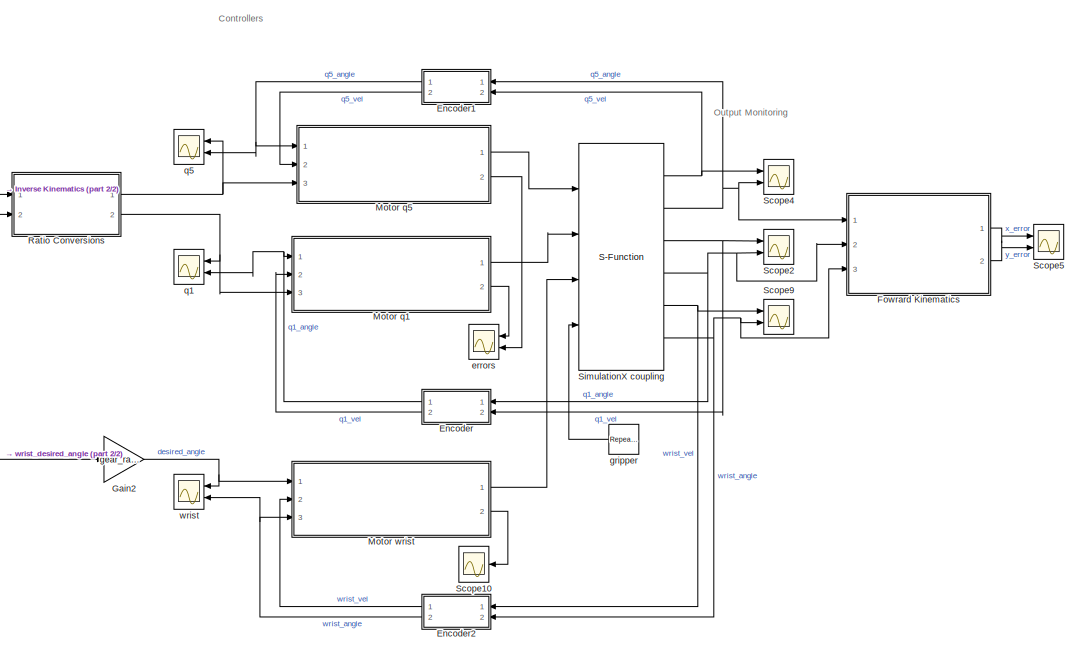
[diagram: root canvas - part 1/2, right side, full height]
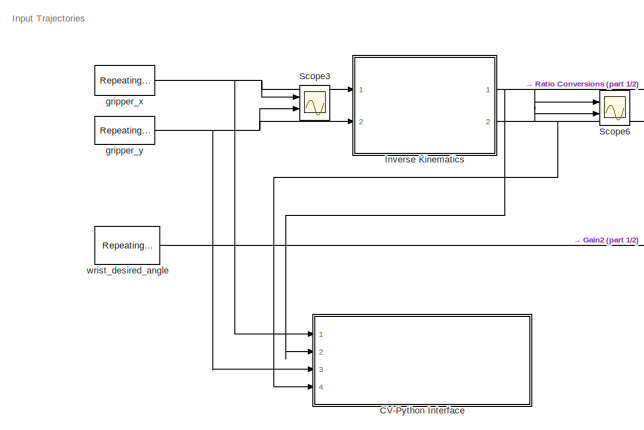
[diagram: root canvas - part 2/2, middle left region]
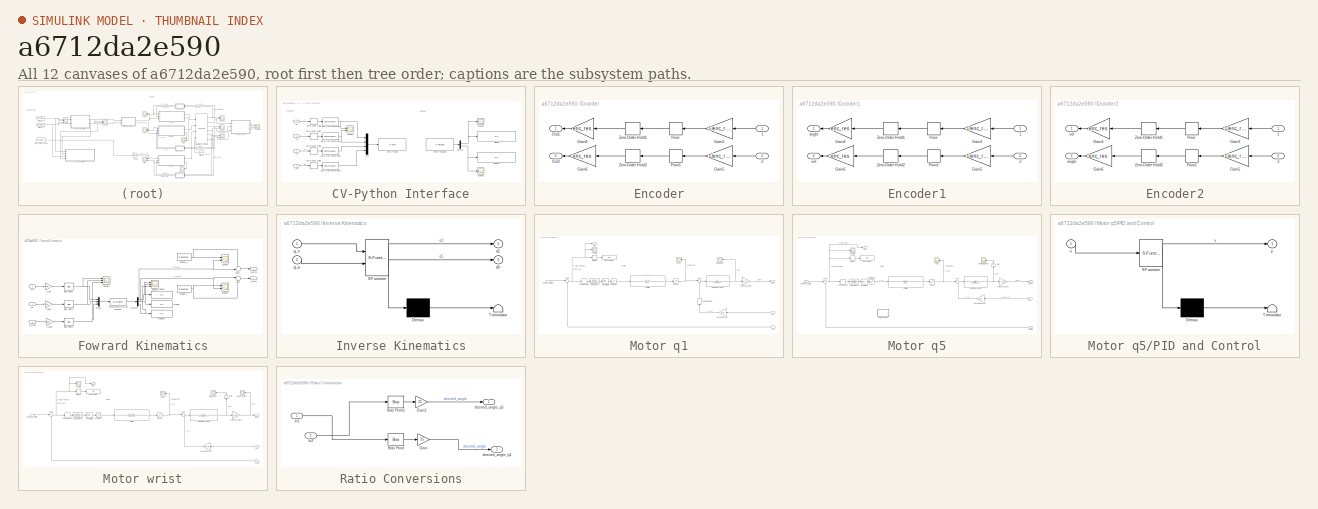
[diagram: thumbnail index - all 12 canvases of the model, root first then tree order]
MODEL slx_a6712da2e590
KIND model
CONFIG AbsTol = auto
CONFIG EnableMultiTasking = off
CONFIG FixedStep = 0.00001
CONFIG InitFcn = p_init;\np_init_wrist;
CONFIG MaxStep = auto
CONFIG MinStep = auto
CONFIG RelTol = 1
CONFIG SampleTimeConstraint = Unconstrained
CONFIG SolverName = ode15s
CONFIG StartTime = 0.0
CONFIG StopTime = 0.75
BLOCK [SubSystem] CV-Python Interface
  Commented = on
  Ports = [4]
  RequestExecContextInheritance = off
BLOCK [DataTypeConversion] CV-Python Interface/Data Type Conversion
  OutDataTypeStr = double
  RndMeth = Floor
  SaturateOnIntegerOverflow = off
BLOCK [DataTypeConversion] CV-Python Interface/Data Type Conversion1
  OutDataTypeStr = double
  RndMeth = Floor
  SaturateOnIntegerOverflow = off
BLOCK [DataTypeConversion] CV-Python Interface/Data Type Conversion2
  NameLocation = top
  OutDataTypeStr = double
  RndMeth = Floor
  SaturateOnIntegerOverflow = off
BLOCK [DataTypeConversion] CV-Python Interface/Data Type Conversion3
  NameLocation = top
  OutDataTypeStr = double
  RndMeth = Floor
  SaturateOnIntegerOverflow = off
BLOCK [Demux] CV-Python Interface/Demux
  Outputs = 2
  Ports = [1, 2]
BLOCK [Display] CV-Python Interface/Display
  Decimation = 1
  Format = decimal (Stored Integer)
  Ports = [1]
BLOCK [Display] CV-Python Interface/Display1
  Decimation = 1
  Format = decimal (Stored Integer)
  Ports = [1]
BLOCK [Inport] CV-Python Interface/In1
  IconDisplay = Signal name
BLOCK [Inport] CV-Python Interface/In2
  IconDisplay = Signal name
  Port = 2
BLOCK [Inport] CV-Python Interface/In3
  IconDisplay = Signal name
  Port = 3
BLOCK [Inport] CV-Python Interface/In4
  IconDisplay = Signal name
  Port = 4
BLOCK [Mux] CV-Python Interface/Mux
  DisplayOption = bar
  Ports = [4, 1]
BLOCK [Scope] CV-Python Interface/Scope1
  Floating = off
  NumInputPorts = 1
  Ports = [1]
  ScopeSpecificationString = Simulink.scopes.TimeScopeBlockCfg('CurrentConfiguration', extmgr.ConfigurationSet(extmgr.Configuration('Core','General UI',true),extmgr.Configuration('Core','Source UI',true),extmgr.Configuration('Sources','WiredSimulink',true,'DataLoggingVariableName','ScopeData1'),extmgr.Configuration('Visuals','Time Domain',true,'SerializedDisplays',{struct('MinYLimReal','-124.00000','MaxYLimReal','1126.00000',...<+1384ch>
BLOCK [Scope] CV-Python Interface/Scope2
  Floating = off
  NumInputPorts = 1
  Ports = [1]
  ScopeSpecificationString = Simulink.scopes.TimeScopeBlockCfg('CurrentConfiguration', extmgr.ConfigurationSet(extmgr.Configuration('Core','General UI',true),extmgr.Configuration('Core','Source UI',true),extmgr.Configuration('Sources','WiredSimulink',true,'DataLoggingVariableName','ScopeData2'),extmgr.Configuration('Visuals','Time Domain',true,'SerializedDisplays',{struct('MinYLimReal','-12.4','MaxYLimReal','112.6','YLabelRea...<+1352ch>
BLOCK [Scope] CV-Python Interface/Scope4
  Floating = off
  NumInputPorts = 2
  Ports = [2]
  ScopeSpecificationString = Simulink.scopes.TimeScopeBlockCfg('CurrentConfiguration', extmgr.ConfigurationSet(extmgr.Configuration('Core','General UI',true),extmgr.Configuration('Core','Source UI',true),extmgr.Configuration('Sources','WiredSimulink',true,'DataLoggingVariableName','ScopeData4'),extmgr.Configuration('Visuals','Time Domain',true,'SerializedDisplays',{struct('MinYLimReal','-10.00000','MaxYLimReal','10.00000','YL...<+1442ch>
BLOCK [Reference] CV-Python Interface/TCP//IP Receive  REF=instrumentlib/TCP//IP Receive
  Ports = [0, 1]
  Priority = 1
  SourceBlock = instrumentlib/TCP//IP Receive
  SourceProductBaseCode = IC
  SourceType = TCP/IP Receive
BLOCK [Reference] CV-Python Interface/TCP//IP Send  REF=instrumentlib/TCP//IP Send
  Ports = [1]
  Priority = 2
  SourceBlock = instrumentlib/TCP//IP Send
  SourceProductBaseCode = IC
  SourceType = TCP/IP Send
BLOCK [ZeroOrderHold] CV-Python Interface/Zero-Order Hold
  SampleTime = 0.01
BLOCK [ZeroOrderHold] CV-Python Interface/Zero-Order Hold1
  SampleTime = 0.01
BLOCK [ZeroOrderHold] CV-Python Interface/Zero-Order Hold2
  SampleTime = 0.01
BLOCK [ZeroOrderHold] CV-Python Interface/Zero-Order Hold3
  SampleTime = 0.01
BLOCK [SubSystem] Encoder
  Ports = [2, 2]
  RequestExecContextInheritance = off
BLOCK [Inport] Encoder/1
BLOCK [Inport] Encoder/2
  Port = 2
BLOCK [Rounding] Encoder/Floor
BLOCK [Rounding] Encoder/Floor1
BLOCK [Gain] Encoder/Gain3
  Gain = 1/enc_res
BLOCK [Gain] Encoder/Gain4
  Gain = enc_res
BLOCK [Gain] Encoder/Gain5
  Gain = 1/enc_res
BLOCK [Gain] Encoder/Gain6
  Gain = enc_res
BLOCK [Outport] Encoder/Out1
BLOCK [Outport] Encoder/Out2
  Port = 2
BLOCK [ZeroOrderHold] Encoder/Zero-Order Hold1
  SampleTime = 0.001
BLOCK [ZeroOrderHold] Encoder/Zero-Order Hold2
  SampleTime = 0.001
BLOCK [SubSystem] Encoder1
  Ports = [2, 2]
  RequestExecContextInheritance = off
BLOCK [Inport] Encoder1/1
BLOCK [Inport] Encoder1/2
  Port = 2
BLOCK [Rounding] Encoder1/Floor
BLOCK [Rounding] Encoder1/Floor1
BLOCK [Gain] Encoder1/Gain3
  Gain = 1/enc_res
BLOCK [Gain] Encoder1/Gain4
  Gain = enc_res
BLOCK [Gain] Encoder1/Gain5
  Gain = 1/enc_res
BLOCK [Gain] Encoder1/Gain6
  Gain = enc_res
BLOCK [ZeroOrderHold] Encoder1/Zero-Order Hold1
  SampleTime = 0.001
BLOCK [ZeroOrderHold] Encoder1/Zero-Order Hold2
  SampleTime = 0.001
BLOCK [Outport] Encoder1/angle
BLOCK [Outport] Encoder1/vel
  Port = 2
BLOCK [SubSystem] Encoder2
  Ports = [2, 2]
  RequestExecContextInheritance = off
BLOCK [Inport] Encoder2/1
BLOCK [Inport] Encoder2/2
  Port = 2
BLOCK [Rounding] Encoder2/Floor
BLOCK [Rounding] Encoder2/Floor1
BLOCK [Gain] Encoder2/Gain3
  Gain = 1/enc_res
BLOCK [Gain] Encoder2/Gain4
  Gain = enc_res
BLOCK [Gain] Encoder2/Gain5
  Gain = 1/enc_res
BLOCK [Gain] Encoder2/Gain6
  Gain = enc_res
BLOCK [ZeroOrderHold] Encoder2/Zero-Order Hold1
  SampleTime = 0.001
BLOCK [ZeroOrderHold] Encoder2/Zero-Order Hold2
  SampleTime = 0.001
BLOCK [Outport] Encoder2/angle
  Port = 2
BLOCK [Outport] Encoder2/vel
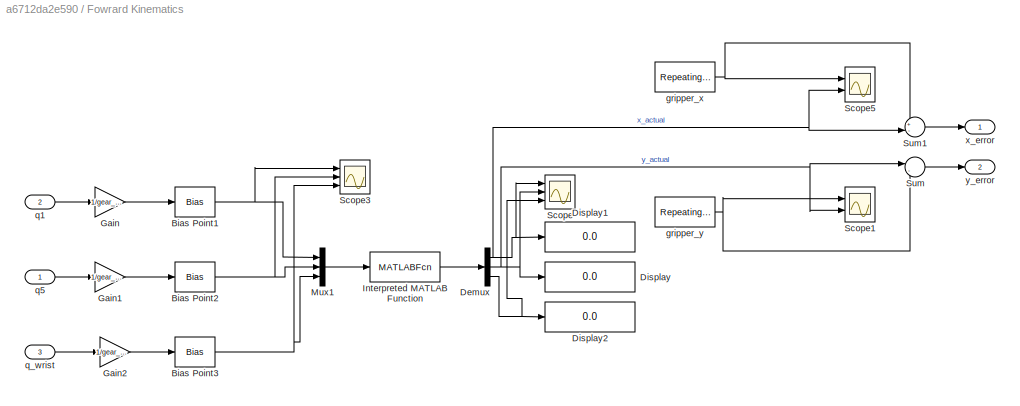
BLOCK [SubSystem] Fowrard Kinematics
  Ports = [3, 2]
  RequestExecContextInheritance = off
BLOCK [Bias] Fowrard Kinematics/Bias Point1
  Bias = +pi/2
  SaturateOnIntegerOverflow = off
BLOCK [Bias] Fowrard Kinematics/Bias Point2
  Bias = +pi/2
  SaturateOnIntegerOverflow = off
BLOCK [Bias] Fowrard Kinematics/Bias Point3
  Bias = +pi/2
  SaturateOnIntegerOverflow = off
BLOCK [Demux] Fowrard Kinematics/Demux
  Outputs = 3
  Ports = [1, 3]
BLOCK [Display] Fowrard Kinematics/Display
  Decimation = 1
  Ports = [1]
BLOCK [Display] Fowrard Kinematics/Display1
  Decimation = 1
  Ports = [1]
BLOCK [Display] Fowrard Kinematics/Display2
  Decimation = 1
  Ports = [1]
BLOCK [Gain] Fowrard Kinematics/Gain
  Gain = 1/gear_ratio
BLOCK [Gain] Fowrard Kinematics/Gain1
  Gain = 1/gear_ratio
BLOCK [Gain] Fowrard Kinematics/Gain2
  Gain = 1/gear_ratio_w
BLOCK [MATLABFcn] Fowrard Kinematics/Interpreted MATLAB Function
  MATLABFcn = fwd_kin_vect(u(1), u(2), u(3))
  OutputDimensions = 3
  Ports = [1, 1]
BLOCK [Mux] Fowrard Kinematics/Mux1
  DisplayOption = bar
  Inputs = 3
  Ports = [3, 1]
BLOCK [Scope] Fowrard Kinematics/Scope
  Floating = off
  NumInputPorts = 3
  Ports = [3]
  ScopeSpecificationString = Simulink.scopes.TimeScopeBlockCfg('CurrentConfiguration', extmgr.ConfigurationSet(extmgr.Configuration('Core','General UI',true),extmgr.Configuration('Core','Source UI',true),extmgr.Configuration('Sources','WiredSimulink',true,'DataLoggingVariableName','ScopeData3'),extmgr.Configuration('Visuals','Time Domain',true,'SerializedDisplays',{struct('MinYLimReal','-10.87955','MaxYLimReal','17.88676','YL...<+1421ch>
BLOCK [Scope] Fowrard Kinematics/Scope1
  Floating = off
  NumInputPorts = 2
  Ports = [2]
  ScopeSpecificationString = Simulink.scopes.TimeScopeBlockCfg('CurrentConfiguration', extmgr.ConfigurationSet(extmgr.Configuration('Core','General UI',true),extmgr.Configuration('Core','Source UI',true),extmgr.Configuration('Sources','WiredSimulink',true,'DataLoggingVariableName','ScopeData4'),extmgr.Configuration('Visuals','Time Domain',true,'SerializedDisplays',{struct('MinYLimReal','3.69595','MaxYLimReal','16.26726','YLab...<+1618ch>
BLOCK [Scope] Fowrard Kinematics/Scope3
  Floating = off
  NumInputPorts = 3
  Ports = [3]
  ScopeSpecificationString = Simulink.scopes.TimeScopeBlockCfg('CurrentConfiguration', extmgr.ConfigurationSet(extmgr.Configuration('Core','General UI',true),extmgr.Configuration('Core','Source UI',true),extmgr.Configuration('Sources','WiredSimulink',true,'DataLoggingVariableName','ScopeData6'),extmgr.Configuration('Visuals','Time Domain',true,'SerializedDisplays',{struct('MinYLimReal','-0.58819','MaxYLimReal','3.72797','YLab...<+1425ch>
BLOCK [Scope] Fowrard Kinematics/Scope5
  Floating = off
  NumInputPorts = 2
  Ports = [2]
  ScopeSpecificationString = Simulink.scopes.TimeScopeBlockCfg('CurrentConfiguration', extmgr.ConfigurationSet(extmgr.Configuration('Core','General UI',true),extmgr.Configuration('Core','Source UI',true),extmgr.Configuration('Sources','WiredSimulink',true,'DataLoggingVariableName','ScopeData3'),extmgr.Configuration('Visuals','Time Domain',true,'SerializedDisplays',{struct('MinYLimReal','-9.50328','MaxYLimReal','5.50036','YLab...<+1616ch>
BLOCK [Sum] Fowrard Kinematics/Sum
  Inputs = |-+
  Ports = [2, 1]
BLOCK [Sum] Fowrard Kinematics/Sum1
  Inputs = +-|
  NameLocation = top
  Ports = [2, 1]
BLOCK [Reference] Fowrard Kinematics/gripper_x  REF=simulink/Sources/Repeating
Sequence
  Ports = [0, 1]
  SourceBlock = simulink/Sources/Repeating\nSequence
  SourceProductBaseCode = SL
  SourceType = Repeating table
BLOCK [Reference] Fowrard Kinematics/gripper_y  REF=simulink/Sources/Repeating
Sequence
  Ports = [0, 1]
  SourceBlock = simulink/Sources/Repeating\nSequence
  SourceProductBaseCode = SL
  SourceType = Repeating table
BLOCK [Inport] Fowrard Kinematics/q1
  Port = 2
BLOCK [Inport] Fowrard Kinematics/q5
BLOCK [Inport] Fowrard Kinematics/q_wrist
  Port = 3
BLOCK [Outport] Fowrard Kinematics/x_error
  IconDisplay = Signal name
BLOCK [Outport] Fowrard Kinematics/y_error
  IconDisplay = Port number and signal name
  Port = 2
BLOCK [Gain] Gain2
  Gain = gear_ratio_w
BLOCK [SubSystem] Inverse Kinematics
  ErrorFcn = Stateflow.Translate.translate
  PermitHierarchicalResolution = ExplicitOnly
  Ports = [2, 2]
  RequestExecContextInheritance = off
  SFBlockType = MATLAB Function
  TreatAsAtomicUnit = on
BLOCK [Demux] Inverse Kinematics/ Demux 
  Outputs = 1
  Ports = [1, 1]
BLOCK [S-Function] Inverse Kinematics/ SFunction 
  EnableBusSupport = on
  FunctionName = sf_sfun
  PortCounts = [2 3]
  Ports = [2, 3]
  SFcnIsStateOwnerBlock = off
  SFunctionDeploymentMode = off
  Tag = Stateflow S-Function 1
BLOCK [Terminator] Inverse Kinematics/ Terminator 
BLOCK [Inport] Inverse Kinematics/g_x
BLOCK [Inport] Inverse Kinematics/g_y
  Port = 2
BLOCK [Outport] Inverse Kinematics/q1
BLOCK [Outport] Inverse Kinematics/q5
  Port = 2
BLOCK [SubSystem] Motor q1
  Ports = [3, 2]
  RequestExecContextInheritance = off
BLOCK [Saturate] Motor q1/Amp Sat
  LowerLimit = v_min_amp
  UpperLimit = v_max_amp
BLOCK [Scope] Motor q1/Amp V
  Floating = off
  NumInputPorts = 1
  Ports = [1]
  ScopeSpecificationString = Simulink.scopes.TimeScopeBlockCfg('CurrentConfiguration', extmgr.ConfigurationSet(extmgr.Configuration('Core','General UI',true),extmgr.Configuration('Core','Source UI',true),extmgr.Configuration('Sources','WiredSimulink',true,'DataLoggingVariableName','ScopeData1'),extmgr.Configuration('Visuals','Time Domain',true,'SerializedDisplays',{struct('MinYLimReal','-30.00000','MaxYLimReal','30.00000','YL...<+1478ch>
BLOCK [TransferFcn] Motor q1/Amplifier
  Denominator = [a b 1]
  Numerator = [K_p]
BLOCK [Gain] Motor q1/Back EMF Const
  Gain = K_b
BLOCK [Saturate] Motor q1/Controller Sat
  LowerLimit = -10
  UpperLimit = 10
BLOCK [TransferFcn] Motor q1/Electrical Dynamics
  Denominator = [L_term R_term]
BLOCK [Display] Motor q1/Max Pos Error
  Decimation = 1
  Ports = [1]
BLOCK [MinMax] Motor q1/MinMax
  Function = max
  Ports = [1, 1]
BLOCK [Scope] Motor q1/Motor Current
  Floating = off
  NumInputPorts = 1
  Ports = [1]
  ScopeSpecificationString = Simulink.scopes.TimeScopeBlockCfg('CurrentConfiguration', extmgr.ConfigurationSet(extmgr.Configuration('Core','General UI',true),extmgr.Configuration('Core','Source UI',true),extmgr.Configuration('Sources','WiredSimulink',true,'DataLoggingVariableName','ScopeData1'),extmgr.Configuration('Visuals','Time Domain',true,'SerializedDisplays',{struct('MinYLimReal','-0.19217','MaxYLimReal','0.28115','YLab...<+1472ch>
BLOCK [Reference] Motor q1/P Controller1  REF=pid_lib/PID Controller
  Ports = [1, 1]
  SourceBlock = pid_lib/PID Controller
  SourceProductBaseCode = SL
  SourceType = PID 1dof
BLOCK [Scope] Motor q1/Pos Error
  Floating = off
  NumInputPorts = 1
  Ports = [1]
  ScopeSpecificationString = Simulink.scopes.TimeScopeBlockCfg('CurrentConfiguration', extmgr.ConfigurationSet(extmgr.Configuration('Core','General UI',true),extmgr.Configuration('Core','Source UI',true),extmgr.Configuration('Sources','WiredSimulink',true),extmgr.Configuration('Visuals','Time Domain',true,'SerializedDisplays',{struct('MinYLimReal','-2.21658','MaxYLimReal','2.67719','YLabelReal','','MinYLimMag','0.00000','MaxY...<+1717ch>
BLOCK [Sum] Motor q1/Sum
  Inputs = |+-
  Ports = [2, 1]
BLOCK [Sum] Motor q1/Sum2
  Inputs = |+-
  Ports = [2, 1]
BLOCK [Gain] Motor q1/Torque Constant
  Gain = K_m
BLOCK [TransferFcn] Motor q1/Transfer Fcn
  Denominator = [1 1250]
  Numerator = [1250]
BLOCK [ZeroOrderHold] Motor q1/Zero-Order Hold1
  SampleTime = comp_time
BLOCK [ZeroOrderHold] Motor q1/Zero-Order Hold2
  NameLocation = left
  SampleTime = comp_time
BLOCK [Inport] Motor q1/angle
BLOCK [Inport] Motor q1/desired_postition
  Port = 3
BLOCK [Outport] Motor q1/error
  Port = 2
BLOCK [Outport] Motor q1/torque
BLOCK [Inport] Motor q1/vel
  Port = 2
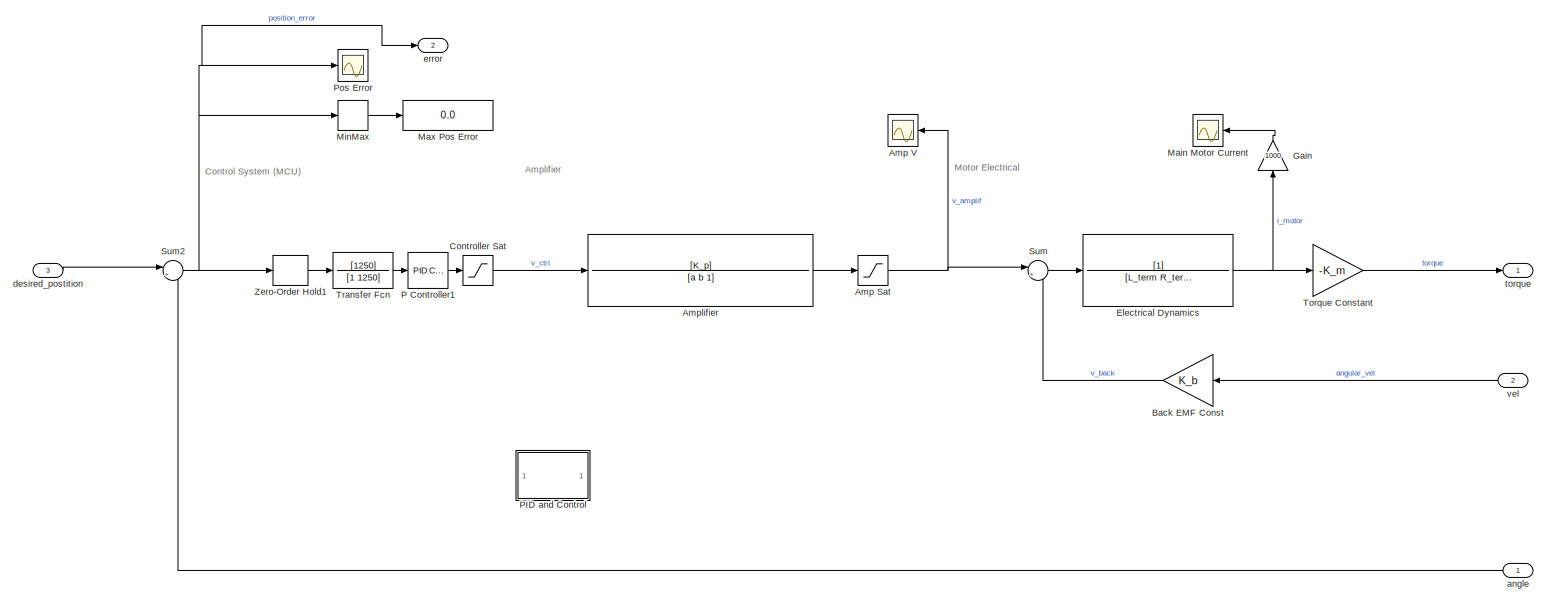
[diagram: Motor q5 - part 1/1, most of the canvas]
BLOCK [SubSystem] Motor q5
  Ports = [3, 2]
  RequestExecContextInheritance = off
BLOCK [Saturate] Motor q5/Amp Sat
  LowerLimit = v_min_amp
  UpperLimit = v_max_amp
BLOCK [Scope] Motor q5/Amp V
  Floating = off
  NumInputPorts = 1
  Ports = [1]
  ScopeSpecificationString = Simulink.scopes.TimeScopeBlockCfg('CurrentConfiguration', extmgr.ConfigurationSet(extmgr.Configuration('Core','General UI',true),extmgr.Configuration('Core','Source UI',true),extmgr.Configuration('Sources','WiredSimulink',true,'DataLoggingVariableName','ScopeData1'),extmgr.Configuration('Visuals','Time Domain',true,'SerializedDisplays',{struct('MinYLimReal','-29.74224','MaxYLimReal','27.68014','YL...<+1545ch>
BLOCK [TransferFcn] Motor q5/Amplifier
  Denominator = [a b 1]
  Numerator = [K_p]
BLOCK [Gain] Motor q5/Back EMF Const
  Gain = K_b
BLOCK [Saturate] Motor q5/Controller Sat
  LowerLimit = -10
  UpperLimit = 10
BLOCK [TransferFcn] Motor q5/Electrical Dynamics
  Denominator = [L_term R_term]
BLOCK [Gain] Motor q5/Gain
  Gain = 1000
  NameLocation = right
BLOCK [Scope] Motor q5/Main Motor Current
  Floating = off
  NumInputPorts = 1
  Ports = [1]
  ScopeSpecificationString = Simulink.scopes.TimeScopeBlockCfg('CurrentConfiguration', extmgr.ConfigurationSet(extmgr.Configuration('Core','General UI',true),extmgr.Configuration('Core','Source UI',true),extmgr.Configuration('Sources','WiredSimulink',true,'DataLoggingVariableName','ScopeData1'),extmgr.Configuration('Visuals','Time Domain',true,'SerializedDisplays',{struct('MinYLimReal','-295.45335','MaxYLimReal','174.74861','...<+1573ch>
BLOCK [Display] Motor q5/Max Pos Error
  Decimation = 1
  Ports = [1]
BLOCK [MinMax] Motor q5/MinMax
  Function = max
  Ports = [1, 1]
BLOCK [Reference] Motor q5/P Controller1  REF=pid_lib/PID Controller
  Ports = [1, 1]
  SourceBlock = pid_lib/PID Controller
  SourceProductBaseCode = SL
  SourceType = PID 1dof
BLOCK [SubSystem] Motor q5/PID and Control
  Commented = on
  ErrorFcn = Stateflow.Translate.translate
  PermitHierarchicalResolution = ExplicitOnly
  Ports = [1, 1]
  RequestExecContextInheritance = off
  SFBlockType = MATLAB Function
  TreatAsAtomicUnit = on
BLOCK [Demux] Motor q5/PID and Control/ Demux 
  Outputs = 1
  Ports = [1, 1]
BLOCK [S-Function] Motor q5/PID and Control/ SFunction 
  EnableBusSupport = on
  FunctionName = sf_sfun
  PortCounts = [1 2]
  Ports = [1, 2]
  SFcnIsStateOwnerBlock = off
  SFunctionDeploymentMode = off
  Tag = Stateflow S-Function 2
BLOCK [Terminator] Motor q5/PID and Control/ Terminator 
BLOCK [Inport] Motor q5/PID and Control/u
BLOCK [Outport] Motor q5/PID and Control/y
BLOCK [Scope] Motor q5/Pos Error
  Floating = off
  NumInputPorts = 1
  Ports = [1]
  ScopeSpecificationString = Simulink.scopes.TimeScopeBlockCfg('CurrentConfiguration', extmgr.ConfigurationSet(extmgr.Configuration('Core','General UI',true),extmgr.Configuration('Core','Source UI',true),extmgr.Configuration('Sources','WiredSimulink',true),extmgr.Configuration('Visuals','Time Domain',true,'SerializedDisplays',{struct('MinYLimReal','-3.61283','MaxYLimReal','2.14676','YLabelReal','','MinYLimMag','0.00000','MaxY...<+1692ch>
BLOCK [Sum] Motor q5/Sum
  Inputs = |+-
  Ports = [2, 1]
BLOCK [Sum] Motor q5/Sum2
  Inputs = |+-
  Ports = [2, 1]
BLOCK [Gain] Motor q5/Torque Constant
  Gain = -K_m
BLOCK [TransferFcn] Motor q5/Transfer Fcn
  Denominator = [1 1250]
  Numerator = [1250]
BLOCK [ZeroOrderHold] Motor q5/Zero-Order Hold1
  SampleTime = comp_time
BLOCK [Inport] Motor q5/angle
BLOCK [Inport] Motor q5/desired_postition
  Port = 3
BLOCK [Outport] Motor q5/error
  Port = 2
BLOCK [Outport] Motor q5/torque
BLOCK [Inport] Motor q5/vel
  Port = 2
BLOCK [SubSystem] Motor wrist
  Ports = [3, 2]
  RequestExecContextInheritance = off
BLOCK [Saturate] Motor wrist/Amp Sat
  LowerLimit = v_min_amp_w
  UpperLimit = v_max_amp_w
BLOCK [Scope] Motor wrist/Amp V
  Floating = off
  NumInputPorts = 1
  Ports = [1]
  ScopeSpecificationString = Simulink.scopes.TimeScopeBlockCfg('CurrentConfiguration', extmgr.ConfigurationSet(extmgr.Configuration('Core','General UI',true),extmgr.Configuration('Core','Source UI',true),extmgr.Configuration('Sources','WiredSimulink',true,'DataLoggingVariableName','ScopeData1'),extmgr.Configuration('Visuals','Time Domain',true,'SerializedDisplays',{struct('MinYLimReal','-0.00029','MaxYLimReal','0.0002','YLabe...<+1468ch>
BLOCK [TransferFcn] Motor wrist/Amplifier
  Denominator = [a_w b_w 1]
  Numerator = [K_p_w]
BLOCK [Gain] Motor wrist/Back EMF Const
  Gain = K_b_w
BLOCK [Saturate] Motor wrist/Controller Sat
  LowerLimit = -10
  UpperLimit = 10
BLOCK [TransferFcn] Motor wrist/Electrical Dynamics
  Denominator = [L_term_w R_term_w]
BLOCK [Gain] Motor wrist/Gain
  Gain = 1000
  NameLocation = right
BLOCK [Display] Motor wrist/Max Pos Error
  Decimation = 1
  Ports = [1]
BLOCK [MinMax] Motor wrist/MinMax
  Function = max
  Ports = [1, 1]
BLOCK [Reference] Motor wrist/P Controller1  REF=pid_lib/PID Controller
  Ports = [1, 1]
  SourceBlock = pid_lib/PID Controller
  SourceProductBaseCode = SL
  SourceType = PID 1dof
BLOCK [Scope] Motor wrist/Pos Error
  Floating = off
  NumInputPorts = 1
  Ports = [1]
  ScopeSpecificationString = Simulink.scopes.TimeScopeBlockCfg('CurrentConfiguration', extmgr.ConfigurationSet(extmgr.Configuration('Core','General UI',true),extmgr.Configuration('Core','Source UI',true),extmgr.Configuration('Sources','WiredSimulink',true),extmgr.Configuration('Visuals','Time Domain',true,'SerializedDisplays',{struct('MinYLimReal','-112.30578','MaxYLimReal','71.44251','YLabelReal','','MinYLimMag',' 0.00000','...<+1729ch>
BLOCK [Sum] Motor wrist/Sum
  Inputs = |+-
  Ports = [2, 1]
BLOCK [Sum] Motor wrist/Sum2
  Inputs = |+-
  Ports = [2, 1]
BLOCK [Gain] Motor wrist/Torque Constant
  Gain = K_m_w
BLOCK [TransferFcn] Motor wrist/Transfer Fcn
  Denominator = [1 1250]
  Numerator = [1250]
BLOCK [ZeroOrderHold] Motor wrist/Zero-Order Hold1
  SampleTime = comp_time
BLOCK [Inport] Motor wrist/angle
  Port = 3
BLOCK [Inport] Motor wrist/desired_postition
BLOCK [Outport] Motor wrist/error
  Port = 2
BLOCK [Outport] Motor wrist/torque
BLOCK [Scope] Motor wrist/torque_output
  Floating = off
  NumInputPorts = 1
  Ports = [1]
  ScopeSpecificationString = Simulink.scopes.TimeScopeBlockCfg('CurrentConfiguration', extmgr.ConfigurationSet(extmgr.Configuration('Core','General UI',true),extmgr.Configuration('Core','Source UI',true),extmgr.Configuration('Sources','WiredSimulink',true,'DataLoggingVariableName','ScopeData6'),extmgr.Configuration('Visuals','Time Domain',true,'SerializedDisplays',{struct('MinYLimReal','-0.00762','MaxYLimReal','0.00805','YLab...<+1471ch>
BLOCK [Inport] Motor wrist/vel
  Port = 2
BLOCK [Scope] Motor wrist/wrist_motor_i
  Floating = off
  NumInputPorts = 1
  Ports = [1]
  ScopeSpecificationString = Simulink.scopes.TimeScopeBlockCfg('CurrentConfiguration', extmgr.ConfigurationSet(extmgr.Configuration('Core','General UI',true),extmgr.Configuration('Core','Source UI',true),extmgr.Configuration('Sources','WiredSimulink',true,'DataLoggingVariableName','ScopeData2'),extmgr.Configuration('Visuals','Time Domain',true,'SerializedDisplays',{struct('MinYLimReal','-41.8256','MaxYLimReal','46.25411','YLa...<+1563ch>
BLOCK [SubSystem] Ratio Conversions
  Ports = [2, 2]
  RequestExecContextInheritance = off
BLOCK [Bias] Ratio Conversions/Bias Point
  Bias = -pi/2
  SaturateOnIntegerOverflow = off
BLOCK [Bias] Ratio Conversions/Bias Point1
  Bias = -pi/2
  SaturateOnIntegerOverflow = off
BLOCK [Gain] Ratio Conversions/Gain
  Gain = 35
BLOCK [Gain] Ratio Conversions/Gain1
  Gain = 35
BLOCK [Inport] Ratio Conversions/In1
BLOCK [Inport] Ratio Conversions/In2
  Port = 2
BLOCK [Outport] Ratio Conversions/desired_angle_q1
  Port = 2
BLOCK [Outport] Ratio Conversions/desired_angle_q5
BLOCK [Scope] Scope10
  Floating = off
  NumInputPorts = 1
  Ports = [1]
  ScopeSpecificationString = Simulink.scopes.TimeScopeBlockCfg('CurrentConfiguration', extmgr.ConfigurationSet(extmgr.Configuration('Core','General UI',true),extmgr.Configuration('Core','Source UI',true),extmgr.Configuration('Sources','WiredSimulink',true,'DataLoggingVariableName','ScopeData5'),extmgr.Configuration('Visuals','Time Domain',true,'SerializedDisplays',{struct('MinYLimReal','-4.01056','MaxYLimReal','3.55522','YLab...<+1542ch>
BLOCK [Scope] Scope2
  Floating = off
  NumInputPorts = 2
  Ports = [2]
  ScopeSpecificationString = Simulink.scopes.TimeScopeBlockCfg('CurrentConfiguration', extmgr.ConfigurationSet(extmgr.Configuration('Core','General UI',true),extmgr.Configuration('Core','Source UI',true),extmgr.Configuration('Sources','WiredSimulink',true,'DataLoggingVariableName','ScopeData1'),extmgr.Configuration('Visuals','Time Domain',true,'SerializedDisplays',{struct('MinYLimReal','-888.96395','MaxYLimReal','968.58225','...<+1446ch>
BLOCK [Scope] Scope3
  Floating = off
  NumInputPorts = 2
  Ports = [2]
  ScopeSpecificationString = Simulink.scopes.TimeScopeBlockCfg('CurrentConfiguration', extmgr.ConfigurationSet(extmgr.Configuration('Core','General UI',true),extmgr.Configuration('Core','Source UI',true),extmgr.Configuration('Sources','WiredSimulink',true,'DataLoggingVariableName','ScopeData3'),extmgr.Configuration('Visuals','Time Domain',true,'SerializedDisplays',{struct('MinYLimReal','-10.875','MaxYLimReal','17.875','YLabel...<+1405ch>
BLOCK [Scope] Scope4
  Floating = off
  NumInputPorts = 2
  Ports = [2]
  ScopeSpecificationString = Simulink.scopes.TimeScopeBlockCfg('CurrentConfiguration', extmgr.ConfigurationSet(extmgr.Configuration('Core','General UI',true),extmgr.Configuration('Core','Source UI',true),extmgr.Configuration('Sources','WiredSimulink',true,'DataLoggingVariableName','ScopeData2'),extmgr.Configuration('Visuals','Time Domain',true,'SerializedDisplays',{struct('MinYLimReal','-34.03003','MaxYLimReal','80.15903','YL...<+1817ch>
BLOCK [Scope] Scope5
  Floating = off
  NumInputPorts = 2
  Ports = [2]
  ScopeSpecificationString = Simulink.scopes.TimeScopeBlockCfg('CurrentConfiguration', extmgr.ConfigurationSet(extmgr.Configuration('Core','General UI',true),extmgr.Configuration('Core','Source UI',true),extmgr.Configuration('Sources','WiredSimulink',true,'DataLoggingVariableName','ScopeData5'),extmgr.Configuration('Visuals','Time Domain',true,'SerializedDisplays',{struct('MinYLimReal','-0.70355','MaxYLimReal','0.72823','YLab...<+1583ch>
BLOCK [Scope] Scope6
  Floating = off
  NumInputPorts = 2
  Ports = [2]
  ScopeSpecificationString = Simulink.scopes.TimeScopeBlockCfg('CurrentConfiguration', extmgr.ConfigurationSet(extmgr.Configuration('Core','General UI',true),extmgr.Configuration('Core','Source UI',true),extmgr.Configuration('Sources','WiredSimulink',true,'DataLoggingVariableName','ScopeData3'),extmgr.Configuration('Visuals','Time Domain',true,'SerializedDisplays',{struct('MinYLimReal','-68.94465','MaxYLimReal','15.20467','YL...<+1565ch>
BLOCK [Scope] Scope9
  Floating = off
  NumInputPorts = 2
  Ports = [2]
  ScopeSpecificationString = Simulink.scopes.TimeScopeBlockCfg('CurrentConfiguration', extmgr.ConfigurationSet(extmgr.Configuration('Core','General UI',true),extmgr.Configuration('Core','Source UI',true),extmgr.Configuration('Sources','WiredSimulink',true,'DataLoggingVariableName','ScopeData4'),extmgr.Configuration('Visuals','Time Domain',true,'SerializedDisplays',{struct('MinYLimReal','-801.24296','MaxYLimReal','715.12245','...<+1781ch>
BLOCK [S-Function] SimulationX coupling
  EnableBusSupport = off
  FunctionName = ITIFct2
  Parameters = ip, port, ts, nIn, nOut
  Ports = [4, 6]
  SFcnIsStateOwnerBlock = off
  SFunctionDeploymentMode = off
BLOCK [Scope] errors
  Floating = off
  NumInputPorts = 2
  Ports = [2]
  ScopeSpecificationString = Simulink.scopes.TimeScopeBlockCfg('CurrentConfiguration', extmgr.ConfigurationSet(extmgr.Configuration('Core','General UI',true),extmgr.Configuration('Core','Source UI',true),extmgr.Configuration('Sources','WiredSimulink',true,'DataLoggingVariableName','ScopeData2'),extmgr.Configuration('Visuals','Time Domain',true,'SerializedDisplays',{struct('MinYLimReal','-9.63537','MaxYLimReal','9.72087','YLab...<+1561ch>
BLOCK [Reference] gripper  REF=simulink/Sources/Repeating
Sequence
Interpolated
  Ports = [0, 1]
  SourceBlock = simulink/Sources/Repeating\nSequence\nInterpolated
  SourceProductBaseCode = SL
  SourceType = Repeating Sequence Interpolated
BLOCK [Reference] gripper_x  REF=simulink/Sources/Repeating
Sequence
  Ports = [0, 1]
  SourceBlock = simulink/Sources/Repeating\nSequence
  SourceProductBaseCode = SL
  SourceType = Repeating table
BLOCK [Reference] gripper_y  REF=simulink/Sources/Repeating
Sequence
  Ports = [0, 1]
  SourceBlock = simulink/Sources/Repeating\nSequence
  SourceProductBaseCode = SL
  SourceType = Repeating table
BLOCK [Scope] q1
  Floating = off
  NumInputPorts = 2
  Ports = [2]
  ScopeSpecificationString = Simulink.scopes.TimeScopeBlockCfg('CurrentConfiguration', extmgr.ConfigurationSet(extmgr.Configuration('Core','General UI',true),extmgr.Configuration('Core','Source UI',true),extmgr.Configuration('Sources','WiredSimulink',true,'DataLoggingVariableName','ScopeData3'),extmgr.Configuration('Visuals','Time Domain',true,'SerializedDisplays',{struct('MinYLimReal','-68.89605','MaxYLimReal','15.00247','YL...<+1661ch>
BLOCK [Scope] q5
  Floating = off
  NumInputPorts = 2
  Ports = [2]
  ScopeSpecificationString = Simulink.scopes.TimeScopeBlockCfg('CurrentConfiguration', extmgr.ConfigurationSet(extmgr.Configuration('Core','General UI',true),extmgr.Configuration('Core','Source UI',true),extmgr.Configuration('Sources','WiredSimulink',true,'DataLoggingVariableName','ScopeData1'),extmgr.Configuration('Visuals','Time Domain',true,'SerializedDisplays',{struct('MinYLimReal','-16.95858','MaxYLimReal','71.76093','YL...<+1615ch>
BLOCK [Scope] wrist
  Floating = off
  NumInputPorts = 2
  Ports = [2]
  ScopeSpecificationString = Simulink.scopes.TimeScopeBlockCfg('CurrentConfiguration', extmgr.ConfigurationSet(extmgr.Configuration('Core','General UI',true),extmgr.Configuration('Core','Source UI',true),extmgr.Configuration('Sources','WiredSimulink',true,'DataLoggingVariableName','ScopeData8'),extmgr.Configuration('Visuals','Time Domain',true,'SerializedDisplays',{struct('MinYLimReal','0','MaxYLimReal','75','YLabelReal','ang...<+1586ch>
BLOCK [Reference] wrist_desired_angle  REF=simulink/Sources/Repeating
Sequence
  Ports = [0, 1]
  SourceBlock = simulink/Sources/Repeating\nSequence
  SourceProductBaseCode = SL
  SourceType = Repeating table
ANNOTATION (root): Controllers
ANNOTATION (root): Input Trajectories
ANNOTATION (root): Output Monitoring
ANNOTATION CV-Python Interface: Receive
ANNOTATION CV-Python Interface: Transmit
ANNOTATION Motor q1: Amplifier
ANNOTATION Motor q1: Control System (MCU)
ANNOTATION Motor q1: Motor Electrical
ANNOTATION Motor q5: Amplifier
ANNOTATION Motor q5: Control System (MCU)
ANNOTATION Motor q5: Motor Electrical
ANNOTATION Motor wrist: Amplifier
ANNOTATION Motor wrist: Control System (MCU)
ANNOTATION Motor wrist: Motor Electrical
NET CV-Python Interface/Data Type Conversion1:1 -> CV-Python Interface/Mux:2, CV-Python Interface/Scope4:2
LINE CV-Python Interface/Data Type Conversion2:1 -> CV-Python Interface/Mux:4
LINE CV-Python Interface/Data Type Conversion3:1 -> CV-Python Interface/Mux:3
NET CV-Python Interface/Data Type Conversion:1 -> CV-Python Interface/Mux:1, CV-Python Interface/Scope4:1
NET CV-Python Interface/Demux:1 -> CV-Python Interface/Display:1, CV-Python Interface/Scope1:1
NET CV-Python Interface/Demux:2 -> CV-Python Interface/Display1:1, CV-Python Interface/Scope2:1
LINE CV-Python Interface/In1:1 -> CV-Python Interface/Zero-Order Hold:1
LINE CV-Python Interface/In2:1 -> CV-Python Interface/Zero-Order Hold2:1
LINE CV-Python Interface/In3:1 -> CV-Python Interface/Zero-Order Hold1:1
LINE CV-Python Interface/In4:1 -> CV-Python Interface/Zero-Order Hold3:1
LINE CV-Python Interface/Mux:1 -> CV-Python Interface/TCP//IP Send:1
LINE CV-Python Interface/TCP//IP Receive:1 -> CV-Python Interface/Demux:1
LINE CV-Python Interface/Zero-Order Hold1:1 -> CV-Python Interface/Data Type Conversion1:1
LINE CV-Python Interface/Zero-Order Hold2:1 -> CV-Python Interface/Data Type Conversion3:1
LINE CV-Python Interface/Zero-Order Hold3:1 -> CV-Python Interface/Data Type Conversion2:1
LINE CV-Python Interface/Zero-Order Hold:1 -> CV-Python Interface/Data Type Conversion:1
LINE Encoder/1:1 -> Encoder/Gain3:1
LINE Encoder/2:1 -> Encoder/Gain5:1
LINE Encoder/Floor1:1 -> Encoder/Zero-Order Hold2:1
LINE Encoder/Floor:1 -> Encoder/Zero-Order Hold1:1
LINE Encoder/Gain3:1 -> Encoder/Floor:1
LINE Encoder/Gain4:1 -> Encoder/Out1:1
LINE Encoder/Gain5:1 -> Encoder/Floor1:1
LINE Encoder/Gain6:1 -> Encoder/Out2:1
LINE Encoder/Zero-Order Hold1:1 -> Encoder/Gain4:1
LINE Encoder/Zero-Order Hold2:1 -> Encoder/Gain6:1
LINE Encoder1/1:1 -> Encoder1/Gain3:1
LINE Encoder1/2:1 -> Encoder1/Gain5:1
LINE Encoder1/Floor1:1 -> Encoder1/Zero-Order Hold2:1
LINE Encoder1/Floor:1 -> Encoder1/Zero-Order Hold1:1
LINE Encoder1/Gain3:1 -> Encoder1/Floor:1
LINE Encoder1/Gain4:1 -> Encoder1/angle:1
LINE Encoder1/Gain5:1 -> Encoder1/Floor1:1
LINE Encoder1/Gain6:1 -> Encoder1/vel:1
LINE Encoder1/Zero-Order Hold1:1 -> Encoder1/Gain4:1
LINE Encoder1/Zero-Order Hold2:1 -> Encoder1/Gain6:1
NET Encoder1:1 -> Motor q5:1, q5:2
LINE Encoder1:2 -> Motor q5:2
LINE Encoder2/1:1 -> Encoder2/Gain3:1
LINE Encoder2/2:1 -> Encoder2/Gain5:1
LINE Encoder2/Floor1:1 -> Encoder2/Zero-Order Hold2:1
LINE Encoder2/Floor:1 -> Encoder2/Zero-Order Hold1:1
LINE Encoder2/Gain3:1 -> Encoder2/Floor:1
LINE Encoder2/Gain4:1 -> Encoder2/vel:1
LINE Encoder2/Gain5:1 -> Encoder2/Floor1:1
LINE Encoder2/Gain6:1 -> Encoder2/angle:1
LINE Encoder2/Zero-Order Hold1:1 -> Encoder2/Gain4:1
LINE Encoder2/Zero-Order Hold2:1 -> Encoder2/Gain6:1
LINE Encoder2:1 -> Motor wrist:2
NET Encoder2:2 -> Motor wrist:3, wrist:2
NET Encoder:1 -> Motor q1:1, q1:2
LINE Encoder:2 -> Motor q1:2
NET Fowrard Kinematics/Bias Point1:1 -> Fowrard Kinematics/Mux1:1, Fowrard Kinematics/Scope3:1
NET Fowrard Kinematics/Bias Point2:1 -> Fowrard Kinematics/Mux1:2, Fowrard Kinematics/Scope3:2
NET Fowrard Kinematics/Bias Point3:1 -> Fowrard Kinematics/Mux1:3, Fowrard Kinematics/Scope3:3
NET Fowrard Kinematics/Demux:1 -> Fowrard Kinematics/Display1:1, Fowrard Kinematics/Scope5:2, Fowrard Kinematics/Scope:1, Fowrard Kinematics/Sum1:2
NET Fowrard Kinematics/Demux:2 -> Fowrard Kinematics/Display:1, Fowrard Kinematics/Scope1:2, Fowrard Kinematics/Scope:2, Fowrard Kinematics/Sum:1
NET Fowrard Kinematics/Demux:3 -> Fowrard Kinematics/Display2:1, Fowrard Kinematics/Scope:3
LINE Fowrard Kinematics/Gain1:1 -> Fowrard Kinematics/Bias Point2:1
LINE Fowrard Kinematics/Gain2:1 -> Fowrard Kinematics/Bias Point3:1
LINE Fowrard Kinematics/Gain:1 -> Fowrard Kinematics/Bias Point1:1
LINE Fowrard Kinematics/Interpreted MATLAB Function:1 -> Fowrard Kinematics/Demux:1
LINE Fowrard Kinematics/Mux1:1 -> Fowrard Kinematics/Interpreted MATLAB Function:1
LINE Fowrard Kinematics/Sum1:1 -> Fowrard Kinematics/x_error:1
LINE Fowrard Kinematics/Sum:1 -> Fowrard Kinematics/y_error:1
NET Fowrard Kinematics/gripper_x:1 -> Fowrard Kinematics/Scope5:1, Fowrard Kinematics/Sum1:1
NET Fowrard Kinematics/gripper_y:1 -> Fowrard Kinematics/Scope1:1, Fowrard Kinematics/Sum:2
LINE Fowrard Kinematics/q1:1 -> Fowrard Kinematics/Gain:1
LINE Fowrard Kinematics/q5:1 -> Fowrard Kinematics/Gain1:1
LINE Fowrard Kinematics/q_wrist:1 -> Fowrard Kinematics/Gain2:1
LINE Fowrard Kinematics:1 -> Scope5:1
LINE Fowrard Kinematics:2 -> Scope5:2
NET Gain2:1 -> Motor wrist:1, wrist:1
NET Inverse Kinematics:1 -> CV-Python Interface:2, Ratio Conversions:1, Scope6:1
NET Inverse Kinematics:2 -> CV-Python Interface:4, Ratio Conversions:2, Scope6:2
NET Motor q1/Amp Sat:1 -> Motor q1/Amp V:1, Motor q1/Sum:1
LINE Motor q1/Amplifier:1 -> Motor q1/Amp Sat:1
LINE Motor q1/Back EMF Const:1 -> Motor q1/Zero-Order Hold2:1
LINE Motor q1/Controller Sat:1 -> Motor q1/Amplifier:1
NET Motor q1/Electrical Dynamics:1 -> Motor q1/Motor Current:1, Motor q1/Torque Constant:1
LINE Motor q1/MinMax:1 -> Motor q1/Max Pos Error:1
LINE Motor q1/P Controller1:1 -> Motor q1/Controller Sat:1
NET Motor q1/Sum2:1 -> Motor q1/MinMax:1, Motor q1/Pos Error:1, Motor q1/Zero-Order Hold1:1, Motor q1/error:1
LINE Motor q1/Sum:1 -> Motor q1/Electrical Dynamics:1
LINE Motor q1/Torque Constant:1 -> Motor q1/torque:1
LINE Motor q1/Transfer Fcn:1 -> Motor q1/P Controller1:1
LINE Motor q1/Zero-Order Hold1:1 -> Motor q1/Transfer Fcn:1
LINE Motor q1/Zero-Order Hold2:1 -> Motor q1/Sum:2
LINE Motor q1/angle:1 -> Motor q1/Sum2:2
LINE Motor q1/desired_postition:1 -> Motor q1/Sum2:1
LINE Motor q1/vel:1 -> Motor q1/Back EMF Const:1
LINE Motor q1:1 -> SimulationX coupling:2
LINE Motor q1:2 -> errors:1
NET Motor q5/Amp Sat:1 -> Motor q5/Amp V:1, Motor q5/Sum:1
LINE Motor q5/Amplifier:1 -> Motor q5/Amp Sat:1
LINE Motor q5/Back EMF Const:1 -> Motor q5/Sum:2
LINE Motor q5/Controller Sat:1 -> Motor q5/Amplifier:1
NET Motor q5/Electrical Dynamics:1 -> Motor q5/Gain:1, Motor q5/Torque Constant:1
LINE Motor q5/Gain:1 -> Motor q5/Main Motor Current:1
LINE Motor q5/MinMax:1 -> Motor q5/Max Pos Error:1
LINE Motor q5/P Controller1:1 -> Motor q5/Controller Sat:1
NET Motor q5/Sum2:1 -> Motor q5/MinMax:1, Motor q5/Pos Error:1, Motor q5/Zero-Order Hold1:1, Motor q5/error:1
LINE Motor q5/Sum:1 -> Motor q5/Electrical Dynamics:1
LINE Motor q5/Torque Constant:1 -> Motor q5/torque:1
LINE Motor q5/Transfer Fcn:1 -> Motor q5/P Controller1:1
LINE Motor q5/Zero-Order Hold1:1 -> Motor q5/Transfer Fcn:1
LINE Motor q5/angle:1 -> Motor q5/Sum2:2
LINE Motor q5/desired_postition:1 -> Motor q5/Sum2:1
LINE Motor q5/vel:1 -> Motor q5/Back EMF Const:1
LINE Motor q5:1 -> SimulationX coupling:1
LINE Motor q5:2 -> errors:2
NET Motor wrist/Amp Sat:1 -> Motor wrist/Amp V:1, Motor wrist/Sum:1
LINE Motor wrist/Amplifier:1 -> Motor wrist/Amp Sat:1
LINE Motor wrist/Back EMF Const:1 -> Motor wrist/Sum:2
LINE Motor wrist/Controller Sat:1 -> Motor wrist/Amplifier:1
NET Motor wrist/Electrical Dynamics:1 -> Motor wrist/Gain:1, Motor wrist/Torque Constant:1
LINE Motor wrist/Gain:1 -> Motor wrist/wrist_motor_i:1
LINE Motor wrist/MinMax:1 -> Motor wrist/Max Pos Error:1
LINE Motor wrist/P Controller1:1 -> Motor wrist/Controller Sat:1
NET Motor wrist/Sum2:1 -> Motor wrist/MinMax:1, Motor wrist/Pos Error:1, Motor wrist/Zero-Order Hold1:1, Motor wrist/error:1
LINE Motor wrist/Sum:1 -> Motor wrist/Electrical Dynamics:1
NET Motor wrist/Torque Constant:1 -> Motor wrist/torque:1, Motor wrist/torque_output:1
LINE Motor wrist/Transfer Fcn:1 -> Motor wrist/P Controller1:1
LINE Motor wrist/Zero-Order Hold1:1 -> Motor wrist/Transfer Fcn:1
LINE Motor wrist/angle:1 -> Motor wrist/Sum2:2
LINE Motor wrist/desired_postition:1 -> Motor wrist/Sum2:1
LINE Motor wrist/vel:1 -> Motor wrist/Back EMF Const:1
LINE Motor wrist:1 -> SimulationX coupling:3
LINE Motor wrist:2 -> Scope10:1
LINE Ratio Conversions/Bias Point1:1 -> Ratio Conversions/Gain1:1
LINE Ratio Conversions/Bias Point:1 -> Ratio Conversions/Gain:1
LINE Ratio Conversions/Gain1:1 -> Ratio Conversions/desired_angle_q5:1
LINE Ratio Conversions/Gain:1 -> Ratio Conversions/desired_angle_q1:1
LINE Ratio Conversions/In1:1 -> Ratio Conversions/Bias Point:1
LINE Ratio Conversions/In2:1 -> Ratio Conversions/Bias Point1:1
NET Ratio Conversions:1 -> Motor q5:3, q5:1
NET Ratio Conversions:2 -> Motor q1:3, q1:1
NET SimulationX coupling:1 -> Encoder1:2, Scope4:1
NET SimulationX coupling:2 -> Encoder1:1, Fowrard Kinematics:1, Scope4:2
NET SimulationX coupling:3 -> Encoder:2, Scope2:1
NET SimulationX coupling:4 -> Encoder:1, Fowrard Kinematics:2, Scope2:2
NET SimulationX coupling:5 -> Encoder2:1, Scope9:1
NET SimulationX coupling:6 -> Encoder2:2, Fowrard Kinematics:3, Scope9:2
LINE gripper:1 -> SimulationX coupling:4
NET gripper_x:1 -> CV-Python Interface:1, Inverse Kinematics:1, Scope3:1
NET gripper_y:1 -> CV-Python Interface:3, Inverse Kinematics:2, Scope3:2
LINE wrist_desired_angle:1 -> Gain2:1
note: NET lines group one-source signal fan-out (src -> all destinations, sorted); 1:1 wires keep LINE
CHART Motor q5/PID and Control states=1 transitions=1
  STATE_LABEL 'eML_blk_kernel()'
  STATE_LABEL 'SCRIPT:\nfunction y = fcn(u)\nglobal P_m;\n\ny = P_m * u;\n'
CHART Inverse Kinematics states=1 transitions=1
  STATE_LABEL 'eML_blk_kernel()'
  STATE_LABEL 'SCRIPT:\nfunction [q1, q5] = inv_kin(g_x, g_y)\n% Calculates inverse kinematics of robot\n% @param x position of gripper center\n% @param y position of gripper center\n% @return q1, q2 of motors\n\n    l1 = 6.5; l4 = l1;     % arms attached to motors\n    l2 = 8.5; l3 = l2;     % arms attached to gripper\n    l5 = 4;                % motor spacing, 5th link\n    xg = 0;                % x offset from q3 to ...<+621ch>'
CHART  states=0 transitions=0
CHART  states=0 transitions=0
